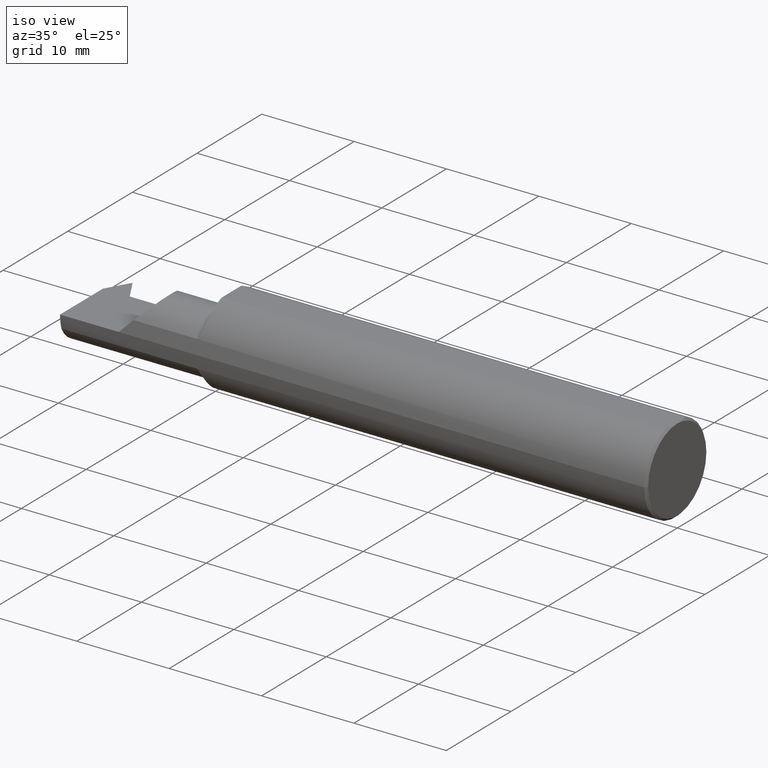
[diagram: clean part render]
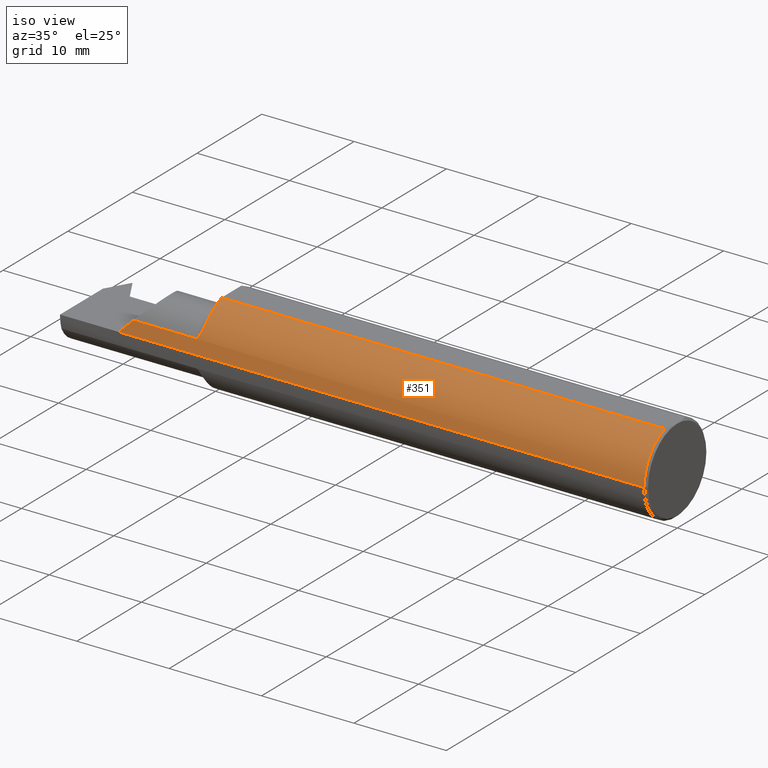
[diagram: same view with one face highlighted and labeled with its STEP entity id]
A machine part, iso view. The second image highlights one B-rep face of the part: STEP entity #351.
In plain terms, the highlighted cylindrical surface (partial cylindrical patch) has radius 4.7587 mm, axis along (1, 0, -0).
Its self-contained STEP definition (entity closure, byte-faithful):
#4 = DIRECTION ( 'NONE',  ( 1.000000000000000000, 1.224646799147352961E-16, -0.000000000000000000 ) ) ;
#33 = CARTESIAN_POINT ( 'NONE',  ( -1.922655856876659186, -0.1781552959227971356, 0.05797775639605650538 ) ) ;
#49 = ORIENTED_EDGE ( 'NONE', *, *, #510, .T. ) ;
#52 = CARTESIAN_POINT ( 'NONE',  ( -1.900459820461650740, -0.1306920593655933049, 0.1345866223284674645 ) ) ;
#64 = CARTESIAN_POINT ( 'NONE',  ( -0.009999999999999073866, 3.661693929450587103E-16, 0.000000000000000000 ) ) ;
#72 = LINE ( 'NONE', #869, #108 ) ;
#85 = DIRECTION ( 'NONE',  ( 1.000000000000000000, -9.108622265535208572E-17, 0.000000000000000000 ) ) ;
#86 = EDGE_LOOP ( 'NONE', ( #103, #491, #594, #412, #406, #571, #49 ) ) ;
#90 = EDGE_CURVE ( 'NONE', #378, #579, #840, .T. ) ;
#96 = EDGE_CURVE ( 'NONE', #558, #579, #391, .T. ) ;
#101 = EDGE_CURVE ( 'NONE', #703, #378, #72, .T. ) ;
#103 = ORIENTED_EDGE ( 'NONE', *, *, #572, .F. ) ;
#105 = CARTESIAN_POINT ( 'NONE',  ( -1.899999999999978817, -0.1236042208122531821, 0.1411207813207416562 ) ) ;
#108 = VECTOR ( 'NONE', #739, 39.37007874015748143 ) ;
#110 = CARTESIAN_POINT ( 'NONE',  ( -1.920882408083194992, -0.1776276410483740853, 0.05957475000073310378 ) ) ;
#119 = DIRECTION ( 'NONE',  ( -1.253099476677463101E-16, 1.000000000000000000, 0.000000000000000000 ) ) ;
#148 = DIRECTION ( 'NONE',  ( 1.000000000000000000, 1.224646799147352961E-16, -0.000000000000000000 ) ) ;
#157 = CYLINDRICAL_SURFACE ( 'NONE', #852, 0.1873499999999999055 ) ;
#173 = CARTESIAN_POINT ( 'NONE',  ( -0.009999999999999073866, -0.06039039658753610901, 0.1773500000000000909 ) ) ;
#196 = AXIS2_PLACEMENT_3D ( 'NONE', #64, #541, #119 ) ;
#210 = CIRCLE ( 'NONE', #471, 0.1873499999999999055 ) ;
#218 = FACE_OUTER_BOUND ( 'NONE', #86, .T. ) ;
#241 = CARTESIAN_POINT ( 'NONE',  ( -2.211249739839921791, -0.1843323154515824902, 0.03875026016007789009 ) ) ;
#246 = CARTESIAN_POINT ( 'NONE',  ( -1.918195961774018965, -0.1762973784583063419, 0.06343092843766089117 ) ) ;
#321 = CARTESIAN_POINT ( 'NONE',  ( -1.925000000000000044, -0.1783697086546690846, 0.05730854678360332299 ) ) ;
#351 = ADVANCED_FACE ( 'NONE', ( #218 ), #157, .T. ) ;
#353 = VECTOR ( 'NONE', #4, 39.37007874015748143 ) ;
#360 = CARTESIAN_POINT ( 'NONE',  ( -2.500000000000000000, 6.123233995736767268E-17, 0.000000000000000000 ) ) ;
#377 = CARTESIAN_POINT ( 'NONE',  ( -1.914343418362526306, -0.1730952584121029925, 0.07182162584506007752 ) ) ;
#378 = VERTEX_POINT ( 'NONE', #482 ) ;
#385 = CARTESIAN_POINT ( 'NONE',  ( -1.900000000000000133, -0.1160303770344977697, 0.1470951192431559917 ) ) ;
#391 = LINE ( 'NONE', #455, #353 ) ;
#394 = EDGE_CURVE ( 'NONE', #558, #679, #210, .T. ) ;
#406 = ORIENTED_EDGE ( 'NONE', *, *, #394, .T. ) ;
#412 = ORIENTED_EDGE ( 'NONE', *, *, #96, .F. ) ;
#431 = CARTESIAN_POINT ( 'NONE',  ( -1.908844572613942692, -0.1652240583778483984, 0.08882027308812269484 ) ) ;
#443 = CARTESIAN_POINT ( 'NONE',  ( -2.230507368514858868, -0.1873499999999997390, 0.01949263148514096197 ) ) ;
#448 = DIRECTION ( 'NONE',  ( -1.000000000000000000, 9.108622265535208572E-17, -0.000000000000000000 ) ) ;
#451 = VECTOR ( 'NONE', #448, 39.37007874015748143 ) ;
#454 = CARTESIAN_POINT ( 'NONE',  ( -2.250000000000000000, -0.1873499999999998222, 0.000000000000000000 ) ) ;
#455 = CARTESIAN_POINT ( 'NONE',  ( -2.500000000000000000, -0.06039039658753642126, 0.1773500000000000909 ) ) ;
#464 = CARTESIAN_POINT ( 'NONE',  ( -1.900000000000000133, -0.1160303770344977697, 0.1470951192431559917 ) ) ;
#471 = AXIS2_PLACEMENT_3D ( 'NONE', #692, #85, #492 ) ;
#482 = CARTESIAN_POINT ( 'NONE',  ( -0.009999999999999049580, -0.1873499999999995447, 2.294375778202565098E-17 ) ) ;
#486 = DIRECTION ( 'NONE',  ( 0.000000000000000000, 1.000000000000000000, 0.000000000000000000 ) ) ;
#487 = VERTEX_POINT ( 'NONE', #623 ) ;
#491 = ORIENTED_EDGE ( 'NONE', *, *, #101, .T. ) ;
#492 = DIRECTION ( 'NONE',  ( 0.000000000000000000, -1.000000000000000000, -3.552713678800500929E-15 ) ) ;
#501 = CARTESIAN_POINT ( 'NONE',  ( -1.912861924135736080, -0.1712588160411456784, 0.07610809679501794045 ) ) ;
#510 = EDGE_CURVE ( 'NONE', #487, #652, #768, .T. ) ;
#541 = DIRECTION ( 'NONE',  ( -1.000000000000000000, -1.224646799147319927E-16, 0.000000000000000000 ) ) ;
#547 = CARTESIAN_POINT ( 'NONE',  ( -2.153037187078897574, -0.1783697086546689459, 0.05730854678360326054 ) ) ;
#558 = VERTEX_POINT ( 'NONE', #856 ) ;
#571 = ORIENTED_EDGE ( 'NONE', *, *, #599, .T. ) ;
#572 = EDGE_CURVE ( 'NONE', #703, #652, #857, .T. ) ;
#575 = B_SPLINE_CURVE_WITH_KNOTS ( 'NONE', 3,
 ( #385, #105, #52, #715, #724, #710, #431, #501, #377, #592, #246, #581, #110, #33, #651, #321 ),
 .UNSPECIFIED., .F., .F.,
 ( 4, 2, 2, 2, 2, 2, 2, 4 ),
 ( 0.0004765446698261347944, 0.001211022660611354648, 0.001945500651396574665, 0.002679978642181793814, 0.003047217637574406099, 0.003230837135270713326, 0.003322646884118865638, 0.003414456632967018384 ),
 .UNSPECIFIED. ) ;
#579 = VERTEX_POINT ( 'NONE', #173 ) ;
#581 = CARTESIAN_POINT ( 'NONE',  ( -1.920156893127619169, -0.1773094052629647643, 0.06051821018283330689 ) ) ;
#592 = CARTESIAN_POINT ( 'NONE',  ( -1.917163479082055755, -0.1755340703777922284, 0.06552011612893687831 ) ) ;
#594 = ORIENTED_EDGE ( 'NONE', *, *, #90, .T. ) ;
#599 = EDGE_CURVE ( 'NONE', #679, #487, #575, .T. ) ;
#623 = CARTESIAN_POINT ( 'NONE',  ( -1.925000000000000044, -0.1783697086546690846, 0.05730854678360332299 ) ) ;
#651 = CARTESIAN_POINT ( 'NONE',  ( -1.923764212023046261, -0.1783697086546790767, 0.05730854678357253512 ) ) ;
#652 = VERTEX_POINT ( 'NONE', #742 ) ;
#679 = VERTEX_POINT ( 'NONE', #464 ) ;
#692 = CARTESIAN_POINT ( 'NONE',  ( -1.900000000000000133, 1.347111479062088503E-16, 0.000000000000000000 ) ) ;
#703 = VERTEX_POINT ( 'NONE', #454 ) ;
#710 = CARTESIAN_POINT ( 'NONE',  ( -1.906810654710997754, -0.1605151270935938346, 0.09708342838367754746 ) ) ;
#715 = CARTESIAN_POINT ( 'NONE',  ( -1.902207105173744139, -0.1438831799117017973, 0.1203810775392135518 ) ) ;
#720 = CARTESIAN_POINT ( 'NONE',  ( -2.192691453216396358, -0.1783697086546690014, 0.05730854678360306625 ) ) ;
#724 = CARTESIAN_POINT ( 'NONE',  ( -1.903482061302840700, -0.1498697720273035328, 0.1128244190106259676 ) ) ;
#739 = DIRECTION ( 'NONE',  ( 1.000000000000000000, 1.224646799147352961E-16, -0.000000000000000000 ) ) ;
#742 = CARTESIAN_POINT ( 'NONE',  ( -2.192691453216396358, -0.1783697086546690014, 0.05730854678360306625 ) ) ;
#768 = LINE ( 'NONE', #547, #451 ) ;
#772 = CARTESIAN_POINT ( 'NONE',  ( -2.250000000000000000, -0.1873499999999998222, 0.000000000000000000 ) ) ;
#840 = CIRCLE ( 'NONE', #196, 0.1873499999999999055 ) ;
#852 = AXIS2_PLACEMENT_3D ( 'NONE', #360, #148, #486 ) ;
#856 = CARTESIAN_POINT ( 'NONE',  ( -1.900000000000000133, -0.06039039658753634493, 0.1773500000000000909 ) ) ;
#857 =( BOUNDED_CURVE ( )  B_SPLINE_CURVE ( 3, ( #772, #443, #241, #720 ),
 .UNSPECIFIED., .F., .F. ) 
 B_SPLINE_CURVE_WITH_KNOTS ( ( 4, 4 ),
 ( 4.712388980384689674, 5.023262387692870590 ),
 .UNSPECIFIED. ) 
 CURVE ( )  GEOMETRIC_REPRESENTATION_ITEM ( )  RATIONAL_B_SPLINE_CURVE ( ( 1.000000000000000000, 0.9919626788073501178, 0.9919626788073501178, 1.000000000000000000 ) ) 
 REPRESENTATION_ITEM ( '' )  );
#869 = CARTESIAN_POINT ( 'NONE',  ( -2.500000000000000000, -0.1873499999999998500, 2.294375778202565098E-17 ) ) ;